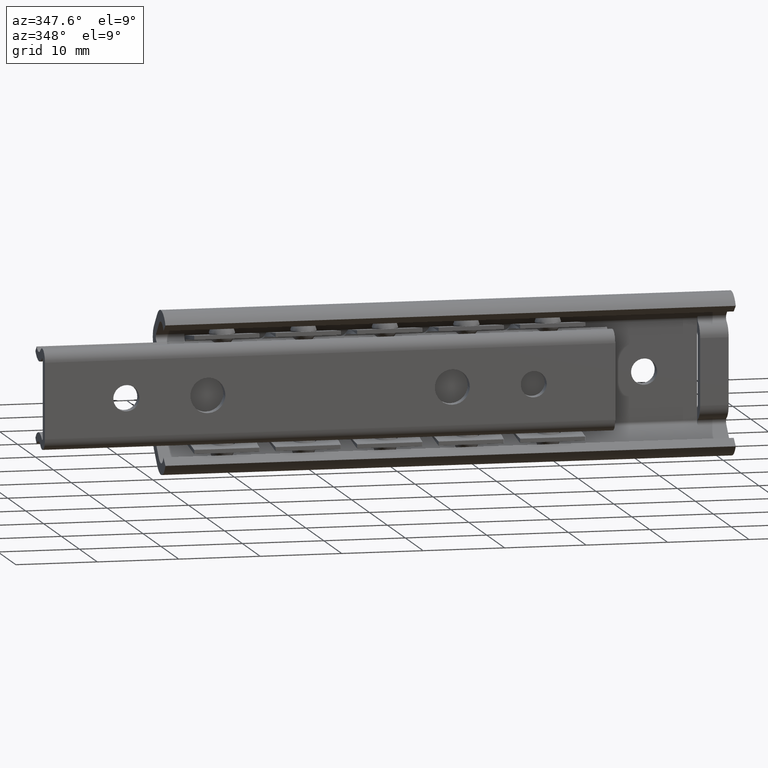
[diagram: clean part render]
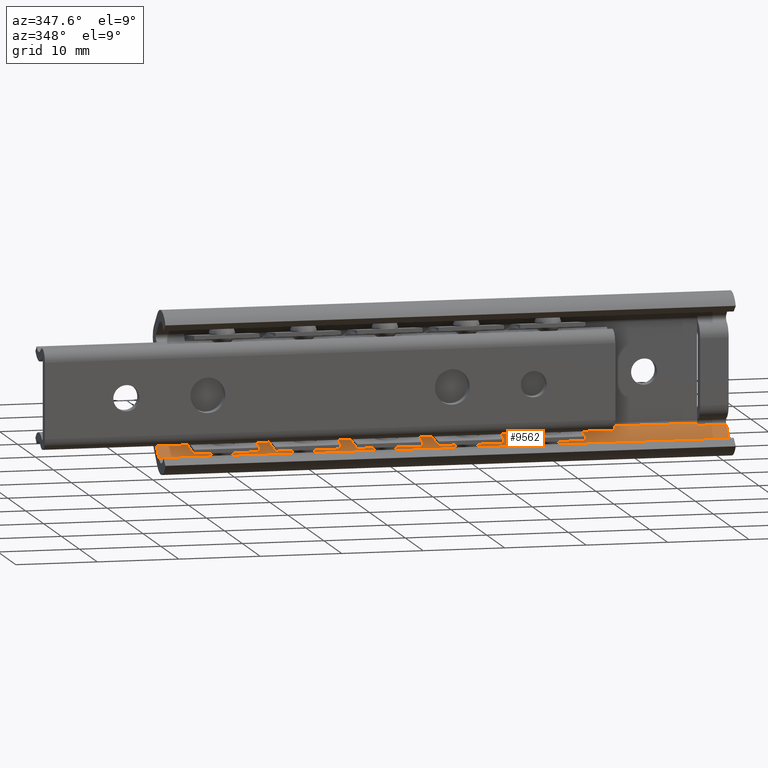
[diagram: same view with one face highlighted and labeled with its STEP entity id]
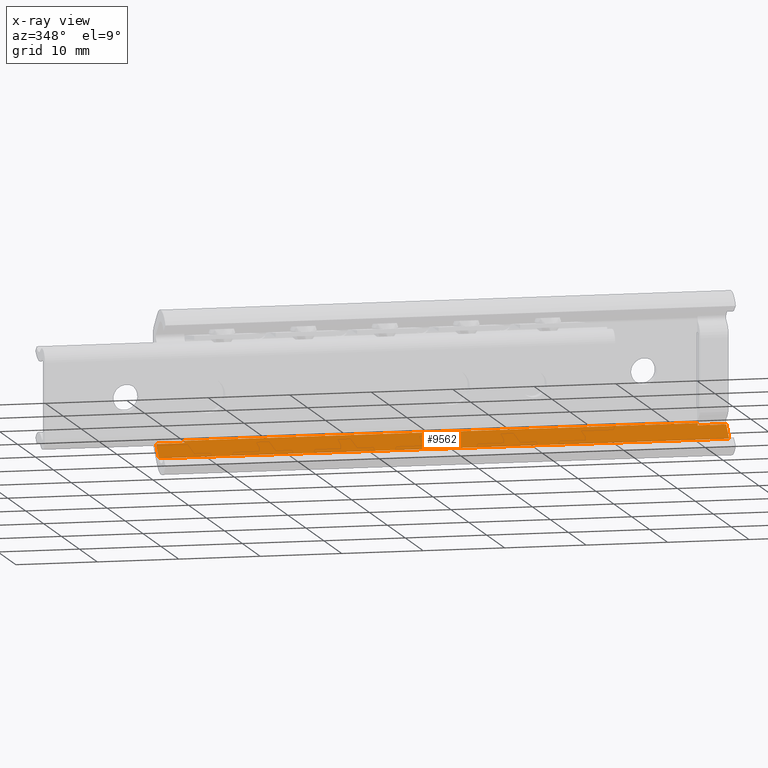
[diagram: x-ray of the same camera — body ghosted, the highlighted face saturated]
A machine part, auxiliary view. The second image highlights one B-rep face of the part: STEP entity #9562.
The next image is the same camera in x-ray: the body ghosted, the highlighted face saturated — about 0% of this face is hidden behind the body in this view.
In plain terms, the highlighted face is a freeform B-spline surface patch.
Its self-contained STEP definition (entity closure, byte-faithful):
#7751=CARTESIAN_POINT('',(70.0,-1.807986000000285,-6.678904000000100));
#7752=VERTEX_POINT('',#7751);
#7768=CARTESIAN_POINT('',(70.0,-3.419692086351310,-8.175724424480430));
#7769=VERTEX_POINT('',#7768);
#7770=CARTESIAN_POINT('',(70.0,-3.419692086351310,-8.175724424480430));
#7771=CARTESIAN_POINT('',(70.0,-1.807986000000285,-6.678904000000100));
#7772=QUASI_UNIFORM_CURVE('',1,(#7770,#7771),.UNSPECIFIED.,.F.,.U.);
#7773=EDGE_CURVE('',#7769,#7752,#7772,.T.);
#8166=CARTESIAN_POINT('',(66.500000000000000,-1.807985381037755,-6.678904275769670));
#8167=VERTEX_POINT('',#8166);
#8183=CARTESIAN_POINT('',(66.500000000000000,-1.807985381037755,-6.678904275769670));
#8184=CARTESIAN_POINT('',(70.0,-1.807986000000285,-6.678904000000100));
#8185=QUASI_UNIFORM_CURVE('',1,(#8183,#8184),.UNSPECIFIED.,.F.,.U.);
#8186=EDGE_CURVE('',#8167,#7752,#8185,.T.);
#8477=CARTESIAN_POINT('',(66.500000000000000,-1.559745300733950,-6.448358676184340));
#8478=VERTEX_POINT('',#8477);
#8492=CARTESIAN_POINT('',(66.500000000000000,-1.807985381037755,-6.678904275769670));
#8493=CARTESIAN_POINT('',(66.500000000000000,-1.559745300733950,-6.448358676184340));
#8494=QUASI_UNIFORM_CURVE('',1,(#8492,#8493),.UNSPECIFIED.,.F.,.U.);
#8495=EDGE_CURVE('',#8167,#8478,#8494,.T.);
#8687=CARTESIAN_POINT('',(0.0,-3.419692086351310,-8.175724424480430));
#8688=VERTEX_POINT('',#8687);
#8704=CARTESIAN_POINT('',(0.0,-1.807986000000285,-6.678904000000100));
#8705=VERTEX_POINT('',#8704);
#8706=CARTESIAN_POINT('',(0.0,-3.419692086351310,-8.175724424480430));
#8707=CARTESIAN_POINT('',(0.0,-1.807986000000285,-6.678904000000100));
#8708=QUASI_UNIFORM_CURVE('',1,(#8706,#8707),.UNSPECIFIED.,.F.,.U.);
#8709=EDGE_CURVE('',#8688,#8705,#8708,.T.);
#9027=CARTESIAN_POINT('',(3.499999999999950,-1.807985381037755,-6.678904275769670));
#9028=VERTEX_POINT('',#9027);
#9029=CARTESIAN_POINT('',(3.499999999999950,-1.807985381037755,-6.678904275769670));
#9030=CARTESIAN_POINT('',(0.0,-1.807986000000285,-6.678904000000100));
#9031=QUASI_UNIFORM_CURVE('',1,(#9029,#9030),.UNSPECIFIED.,.F.,.U.);
#9032=EDGE_CURVE('',#9028,#8705,#9031,.T.);
#9300=CARTESIAN_POINT('',(3.499999999999950,-1.559745300733950,-6.448358676184340));
#9301=VERTEX_POINT('',#9300);
#9302=CARTESIAN_POINT('',(3.499999999999950,-1.559745300733950,-6.448358676184340));
#9303=CARTESIAN_POINT('',(3.499999999999950,-1.807985381037755,-6.678904275769670));
#9304=QUASI_UNIFORM_CURVE('',1,(#9302,#9303),.UNSPECIFIED.,.F.,.U.);
#9305=EDGE_CURVE('',#9301,#9028,#9304,.T.);
#9532=CARTESIAN_POINT('',(66.500000000000000,-1.559745300733950,-6.448358676184340));
#9533=CARTESIAN_POINT('',(3.499999999999950,-1.559745300733950,-6.448358676184340));
#9534=QUASI_UNIFORM_CURVE('',1,(#9532,#9533),.UNSPECIFIED.,.F.,.U.);
#9535=EDGE_CURVE('',#8478,#9301,#9534,.T.);
#9543=CARTESIAN_POINT('',(-3.496499864326412,-1.466840606424407,-6.362077030291860));
#9544=CARTESIAN_POINT('',(-3.496499864326412,-3.512595870266993,-8.262006483702335));
#9545=CARTESIAN_POINT('',(73.496501741872720,-1.466840606424407,-6.362077030291860));
#9546=CARTESIAN_POINT('',(73.496501741872720,-3.512595870266993,-8.262006483702335));
#9547=B_SPLINE_SURFACE_WITH_KNOTS('',1,1,((#9543,#9545),(#9544,#9546)),.UNSPECIFIED.,.F.,.F.,.U.,(2,2),(2,2),(0.0,2.791925236727566),(0.0,76.993001606199130),.UNSPECIFIED.);
#9548=CARTESIAN_POINT('',(70.0,-3.419692086351310,-8.175724424480430));
#9549=CARTESIAN_POINT('',(0.0,-3.419692086351310,-8.175724424480430));
#9550=QUASI_UNIFORM_CURVE('',1,(#9548,#9549),.UNSPECIFIED.,.F.,.U.);
#9551=EDGE_CURVE('',#7769,#8688,#9550,.T.);
#9552=ORIENTED_EDGE('',*,*,#9551,.F.);
#9553=ORIENTED_EDGE('',*,*,#7773,.T.);
#9554=ORIENTED_EDGE('',*,*,#8186,.F.);
#9555=ORIENTED_EDGE('',*,*,#8495,.T.);
#9556=ORIENTED_EDGE('',*,*,#9535,.T.);
#9557=ORIENTED_EDGE('',*,*,#9305,.T.);
#9558=ORIENTED_EDGE('',*,*,#9032,.T.);
#9559=ORIENTED_EDGE('',*,*,#8709,.F.);
#9560=EDGE_LOOP('',(#9552,#9553,#9554,#9555,#9556,#9557,#9558,#9559));
#9561=FACE_OUTER_BOUND('',#9560,.T.);
#9562=ADVANCED_FACE('',(#9561),#9547,.T.);